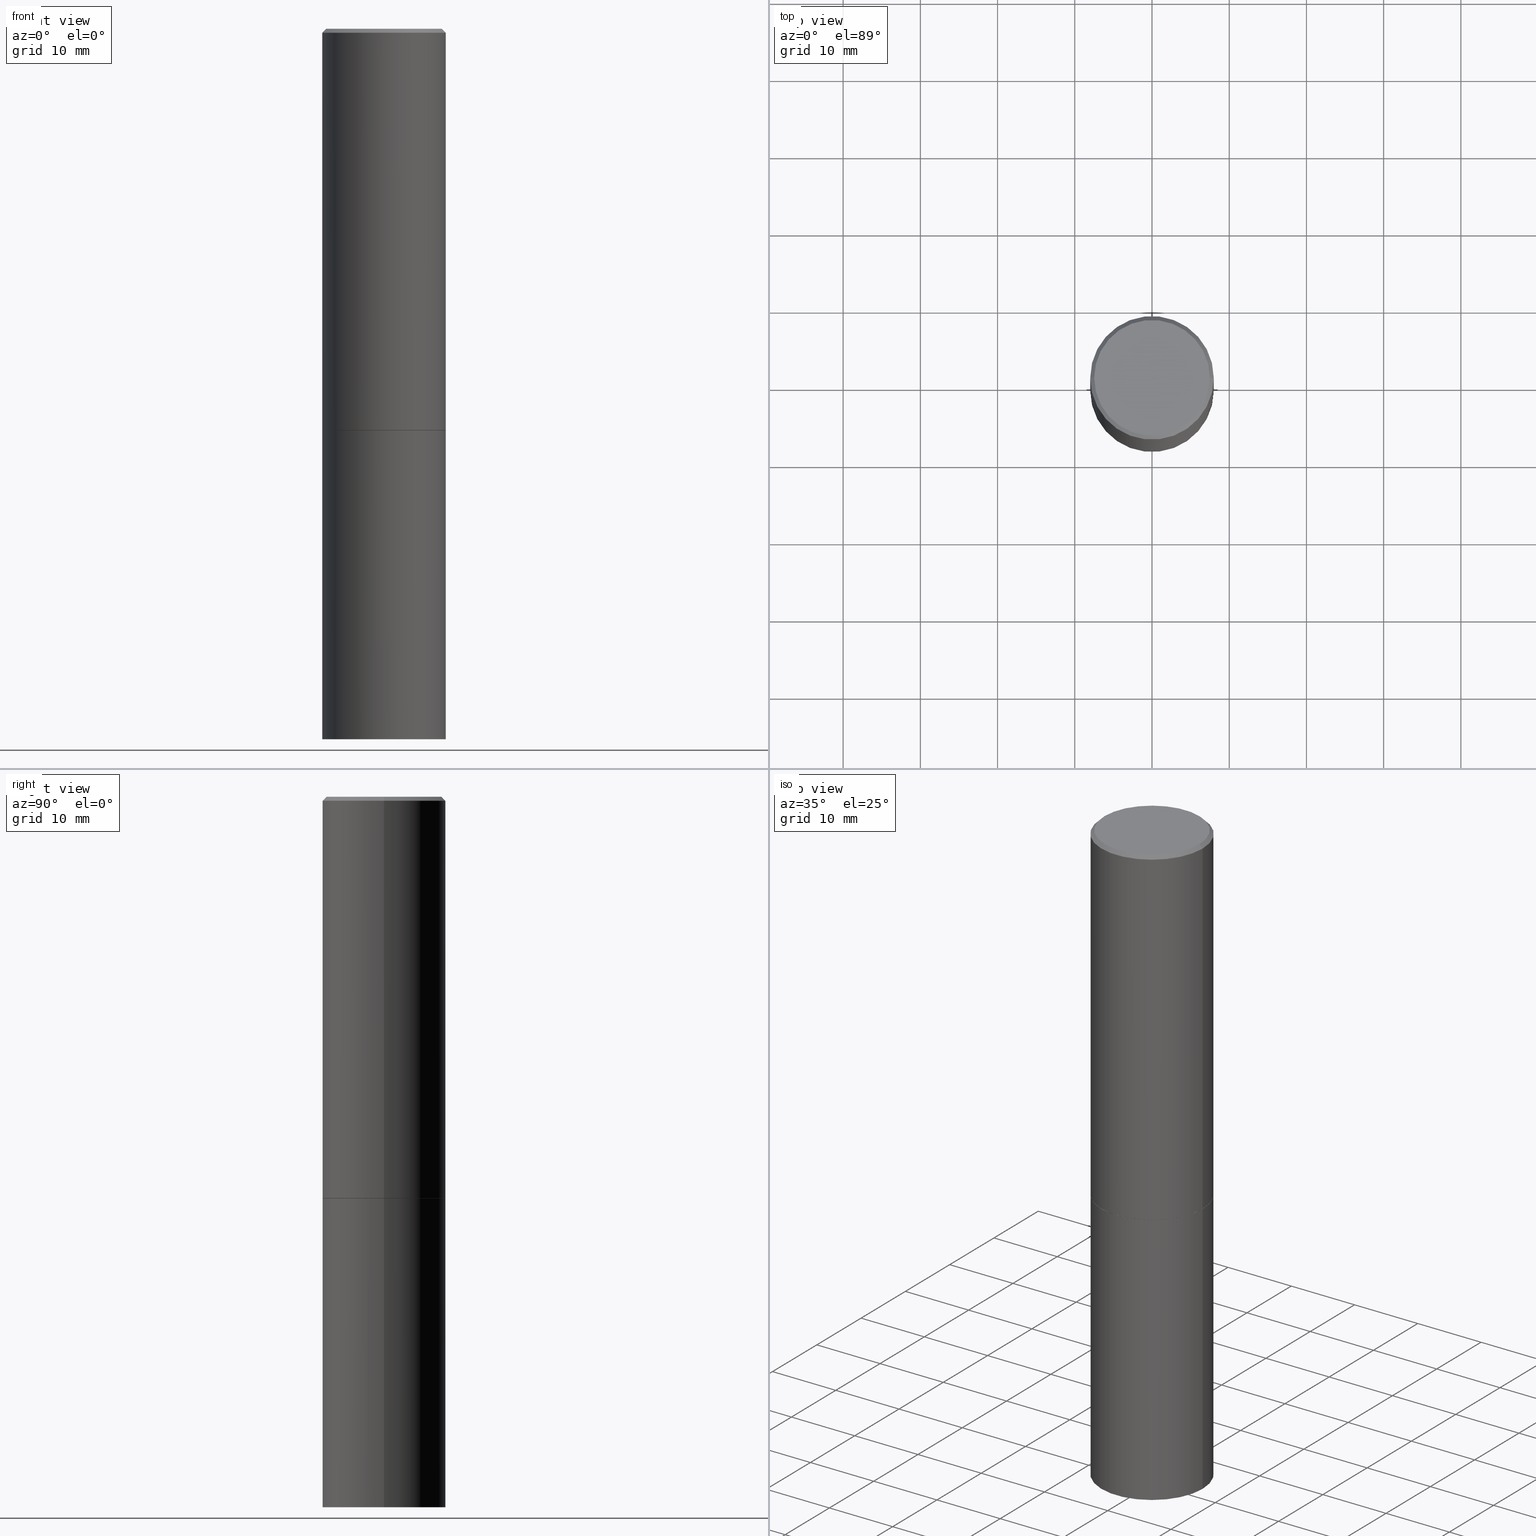
[diagram: canonical four-view strip — front | top / right | iso, engineering-drawing reading convention]
A machine part, canonical four-view strip (front | top / right | iso — engineering-drawing reading convention). The complete STEP part file that produces these views, byte-faithful:
ISO-10303-21;
HEADER;
FILE_DESCRIPTION (( 'STEP AP203' ),
    '1' );
FILE_NAME ('74468.STEP',
    '2024-02-29T11:19:29',
    ( '' ),
    ( '' ),
    'SwSTEP 2.0',
    'SolidWorks 2023',
    '' );
FILE_SCHEMA (( 'CONFIG_CONTROL_DESIGN' ));
ENDSEC;

DATA;
#1 = EDGE_LOOP ( 'NONE', ( #357, #334, #13, #219 ) ) ;
#2 = EDGE_CURVE ( 'NONE', #282, #135, #363, .T. ) ;
#3 = AXIS2_PLACEMENT_3D ( 'NONE', #105, #217, #14 ) ;
#4 = LOCAL_TIME ( 6, 19, 29.00000000000000000, #132 ) ;
#5 = CALENDAR_DATE ( 2024, 29, 2 ) ;
#6 = EDGE_CURVE ( 'NONE', #172, #43, #211, .T. ) ;
#7 = CALENDAR_DATE ( 2024, 29, 2 ) ;
#8 = CYLINDRICAL_SURFACE ( 'NONE', #254, 0.3149500000000000077 ) ;
#9 = DIRECTION ( 'NONE',  ( 1.000000000000000000, -6.982962677686266711E-15, 4.876176775795936353E-29 ) ) ;
#10 = APPROVAL_PERSON_ORGANIZATION ( #259, #210, #33 ) ;
#11 = DATE_AND_TIME ( #7, #4 ) ;
#12 = LINE ( 'NONE', #353, #75 ) ;
#13 = ORIENTED_EDGE ( 'NONE', *, *, #44, .T. ) ;
#14 = DIRECTION ( 'NONE',  ( 1.000000000000000000, -6.982962677686267499E-15, 4.876053491004739391E-29 ) ) ;
#15 = EDGE_LOOP ( 'NONE', ( #274, #253, #249, #165 ) ) ;
#16 = CC_DESIGN_SECURITY_CLASSIFICATION ( #206, ( #269 ) ) ;
#17 = CARTESIAN_POINT ( 'NONE',  ( 0.3149500000000000077, -2.199284095337289871E-15, 1.535751875536930130E-29 ) ) ;
#18 = ADVANCED_FACE ( 'NONE', ( #226 ), #341, .F. ) ;
#19 = VERTEX_POINT ( 'NONE', #292 ) ;
#20 = DIRECTION ( 'NONE',  ( 1.000000000000000000, -6.982962677686267499E-15, 4.876053491004739391E-29 ) ) ;
#21 = ORIENTED_EDGE ( 'NONE', *, *, #283, .T. ) ;
#22 = CARTESIAN_POINT ( 'NONE',  ( 0.3149500000000000077, -9.343553210878133488E-15, -2.046199999999999797 ) ) ;
#23 = EDGE_LOOP ( 'NONE', ( #247, #141 ) ) ;
#24 = VECTOR ( 'NONE', #333, 39.37007874015748143 ) ;
#25 = CARTESIAN_POINT ( 'NONE',  ( -0.2949499999999997124, 2.094539655171993740E-15, 8.537024980186296424E-18 ) ) ;
#26 = ORIENTED_EDGE ( 'NONE', *, *, #251, .T. ) ;
#27 = PERSON_AND_ORGANIZATION ( #120, #275 ) ;
#28 = DIRECTION ( 'NONE',  ( -2.445468806185136597E-29, 3.491481338843145583E-15, 1.000000000000000000 ) ) ;
#29 = CLOSED_SHELL ( 'NONE', ( #40, #336, #324, #192, #360, #80, #116, #152 ) ) ;
#30 = DIRECTION ( 'NONE',  ( -2.445468806185136597E-29, 3.491481338843145583E-15, 1.000000000000000000 ) ) ;
#31 = EDGE_CURVE ( 'NONE', #81, #311, #92, .T. ) ;
#32 = PERSON_AND_ORGANIZATION_ROLE ( 'design_owner' ) ;
#33 = APPROVAL_ROLE ( '' ) ;
#34 = VECTOR ( 'NONE', #339, 39.37007874015748143 ) ;
#35 = PLANE ( 'NONE',  #130 ) ;
#36 = DIRECTION ( 'NONE',  ( 1.000000000000000000, -6.982962677686264344E-15, 0.000000000000000000 ) ) ;
#37 = SECURITY_CLASSIFICATION_LEVEL ( 'unclassified' ) ;
#38 = AXIS2_PLACEMENT_3D ( 'NONE', #131, #65, #265 ) ;
#39 = LOCAL_TIME ( 6, 19, 29.00000000000000000, #127 ) ;
#40 = ADVANCED_FACE ( 'NONE', ( #244 ), #290, .T. ) ;
#41 = DATE_AND_TIME ( #158, #39 ) ;
#42 = CARTESIAN_POINT ( 'NONE',  ( 5.003918271216025517E-29, -7.144269115540843617E-15, -2.046199999999999797 ) ) ;
#43 = VERTEX_POINT ( 'NONE', #271 ) ;
#44 = EDGE_CURVE ( 'NONE', #191, #282, #12, .T. ) ;
#45 = DIRECTION ( 'NONE',  ( 1.000000000000000000, -6.982962677686266711E-15, 0.000000000000000000 ) ) ;
#46 = ORIENTED_EDGE ( 'NONE', *, *, #63, .T. ) ;
#47 = CC_DESIGN_PERSON_AND_ORGANIZATION_ASSIGNMENT ( #349, #299, ( #206 ) ) ;
#48 = DIRECTION ( 'NONE',  ( 2.438088387897960049E-29, -3.491481338843145188E-15, -1.000000000000000000 ) ) ;
#49 = EDGE_LOOP ( 'NONE', ( #101, #83 ) ) ;
#50 = MANIFOLD_SOLID_BREP ( 'Body-Move/Copy2[2]', #29 ) ;
#51 = LINE ( 'NONE', #246, #284 ) ;
#52 = VERTEX_POINT ( 'NONE', #350 ) ;
#53 = DIRECTION ( 'NONE',  ( -1.000000000000000000, 6.982962677686266711E-15, 0.000000000000000000 ) ) ;
#54 = ORIENTED_EDGE ( 'NONE', *, *, #298, .F. ) ;
#55 = CIRCLE ( 'NONE', #203, 0.3149500000000000077 ) ;
#56 = DATE_AND_TIME ( #82, #225 ) ;
#57 = LENGTH_MEASURE_WITH_UNIT ( LENGTH_MEASURE( 0.02539999999999999897 ), #229 );
#58 = COORDINATED_UNIVERSAL_TIME_OFFSET ( 5, 0, .BEHIND. ) ;
#59 = CC_DESIGN_APPROVAL ( #210, ( #269 ) ) ;
#60 = CARTESIAN_POINT ( 'NONE',  ( 0.000000000000000000, 0.000000000000000000, 0.000000000000000000 ) ) ;
#61 = APPROVAL_STATUS ( 'not_yet_approved' ) ;
#62 = FACE_OUTER_BOUND ( 'NONE', #15, .T. ) ;
#63 = EDGE_CURVE ( 'NONE', #135, #282, #236, .T. ) ;
#64 = AXIS2_PLACEMENT_3D ( 'NONE', #78, #72, #115 ) ;
#65 = DIRECTION ( 'NONE',  ( 2.438088387897960049E-29, -3.491481338843145188E-15, -1.000000000000000000 ) ) ;
#66 = ORIENTED_EDGE ( 'NONE', *, *, #63, .F. ) ;
#67 = CARTESIAN_POINT ( 'NONE',  ( 5.006363740022209999E-29, -7.147760596879685046E-15, -2.047199999999999243 ) ) ;
#68 = DIRECTION ( 'NONE',  ( 1.000000000000000000, -6.982962677686266711E-15, 0.000000000000000000 ) ) ;
#69 = CIRCLE ( 'NONE', #260, 0.2949499999999997124 ) ;
#70 = DIRECTION ( 'NONE',  ( 1.000000000000000000, -6.982962677686264344E-15, 0.000000000000000000 ) ) ;
#71 = CARTESIAN_POINT ( 'NONE',  ( 4.890937612370289799E-31, -6.982962677686315028E-17, -0.02000000000000006981 ) ) ;
#72 = DIRECTION ( 'NONE',  ( 2.438088387897960049E-29, -3.491481338843145188E-15, -1.000000000000000000 ) ) ;
#73 = FACE_OUTER_BOUND ( 'NONE', #137, .T. ) ;
#74 = EDGE_LOOP ( 'NONE', ( #104, #296, #169, #366 ) ) ;
#75 = VECTOR ( 'NONE', #325, 39.37007874015748143 ) ;
#76 = AXIS2_PLACEMENT_3D ( 'NONE', #337, #79, #70 ) ;
#77 = CARTESIAN_POINT ( 'NONE',  ( -0.3149499999999997302, 2.129454468560424601E-15, -0.02000000000000006981 ) ) ;
#78 = CARTESIAN_POINT ( 'NONE',  ( 2.199284095337339175E-15, 0.3149499999999928468, -2.047200000000001019 ) ) ;
#79 = DIRECTION ( 'NONE',  ( -2.445468806185136597E-29, 3.491481338843145583E-15, 1.000000000000000000 ) ) ;
#80 = ADVANCED_FACE ( 'NONE', ( #62 ), #99, .T. ) ;
#81 = VERTEX_POINT ( 'NONE', #321 ) ;
#82 = CALENDAR_DATE ( 2024, 29, 2 ) ;
#83 = ORIENTED_EDGE ( 'NONE', *, *, #261, .F. ) ;
#84 = CONICAL_SURFACE ( 'NONE', #89, 0.3149499999999997302, 0.7853981633974471688 ) ;
#85 = FACE_OUTER_BOUND ( 'NONE', #340, .T. ) ;
#86 = PERSON_AND_ORGANIZATION ( #120, #275 ) ;
#87 = CC_DESIGN_DATE_AND_TIME_ASSIGNMENT ( #41, #129, ( #206 ) ) ;
#88 = CYLINDRICAL_SURFACE ( 'NONE', #351, 0.3149499999999998967 ) ;
#89 = AXIS2_PLACEMENT_3D ( 'NONE', #71, #168, #138 ) ;
#90 = APPROVAL_ROLE ( '' ) ;
#91 = CC_DESIGN_PERSON_AND_ORGANIZATION_ASSIGNMENT ( #235, #32, ( #156 ) ) ;
#92 = CIRCLE ( 'NONE', #308, 0.3149500000000000077 ) ;
#93 = AXIS2_PLACEMENT_3D ( 'NONE', #267, #303, #293 ) ;
#94 = DIRECTION ( 'NONE',  ( 1.000000000000000000, -6.982962677686264344E-15, 0.000000000000000000 ) ) ;
#95 = ADVANCED_FACE ( 'NONE', ( #327 ), #182, .T. ) ;
#96 = CARTESIAN_POINT ( 'NONE',  ( 0.3149500000000000077, -1.484542950462716186E-14, -3.621999999999999886 ) ) ;
#97 = DIRECTION ( 'NONE',  ( 1.000000000000000000, -6.982962677686269866E-15, 0.000000000000000000 ) ) ;
#98 = DIRECTION ( 'NONE',  ( -2.445468806185136877E-29, 3.491481338843145188E-15, 1.000000000000000000 ) ) ;
#99 = CONICAL_SURFACE ( 'NONE', #245, 0.3139500000000000068, 0.7853981633975507526 ) ;
#100 = DIRECTION ( 'NONE',  ( -2.445468806185136877E-29, 3.491481338843145188E-15, 1.000000000000000000 ) ) ;
#101 = ORIENTED_EDGE ( 'NONE', *, *, #196, .F. ) ;
#102 = APPROVAL ( #345, 'UNSPECIFIED' ) ;
#103 = CARTESIAN_POINT ( 'NONE',  ( -2.087702828670439639E-46, 2.980686340760894400E-32, 8.537024980200822558E-18 ) ) ;
#104 = ORIENTED_EDGE ( 'NONE', *, *, #6, .T. ) ;
#105 = CARTESIAN_POINT ( 'NONE',  ( -2.087702828670439639E-46, 2.980686340760894400E-32, 8.537024980200822558E-18 ) ) ;
#106 = DIRECTION ( 'NONE',  ( -2.445468806185136597E-29, 3.491481338843145583E-15, 1.000000000000000000 ) ) ;
#107 = LOCAL_TIME ( 6, 19, 29.00000000000000000, #58 ) ;
#108 = LINE ( 'NONE', #255, #34 ) ;
#109 = ORIENTED_EDGE ( 'NONE', *, *, #186, .T. ) ;
#110 = APPROVAL ( #123, 'UNSPECIFIED' ) ;
#111 = APPLICATION_PROTOCOL_DEFINITION ( 'international standard', 'config_control_design', 1994, #180 ) ;
#112 = DIRECTION ( 'NONE',  ( 1.000000000000000000, -6.982962677686266711E-15, 0.000000000000000000 ) ) ;
#113 = APPLICATION_CONTEXT ( 'configuration controlled 3d designs of mechanical parts and assemblies' ) ;
#114 = DIRECTION ( 'NONE',  ( -2.445468806185136597E-29, 3.491481338843145583E-15, 1.000000000000000000 ) ) ;
#115 = DIRECTION ( 'NONE',  ( -1.000000000000000000, 6.982962677686265922E-15, -4.876176775795935793E-29 ) ) ;
#116 = ADVANCED_FACE ( 'NONE', ( #128 ), #35, .F. ) ;
#117 = APPROVAL_PERSON_ORGANIZATION ( #86, #102, #90 ) ;
#118 = CC_DESIGN_DATE_AND_TIME_ASSIGNMENT ( #320, #291, ( #276 ) ) ;
#119 =( NAMED_UNIT ( * ) PLANE_ANGLE_UNIT ( ) SI_UNIT ( $, .RADIAN. ) );
#120 = PERSON ( 'UNSPECIFIED', 'UNSPECIFIED', 'UNSPECIFIED', ('UNSPECIFIED'), ('UNSPECIFIED'), ('UNSPECIFIED') ) ;
#121 = LINE ( 'NONE', #231, #134 ) ;
#122 = PERSON_AND_ORGANIZATION_ROLE ( 'design_supplier' ) ;
#123 = APPROVAL_STATUS ( 'not_yet_approved' ) ;
#124 = ADVANCED_BREP_SHAPE_REPRESENTATION ( '74468', ( #175, #50, #184 ), #240 ) ;
#125 = PRODUCT_RELATED_PRODUCT_CATEGORY ( 'detail', '', ( #156 ) ) ;
#126 = FACE_OUTER_BOUND ( 'NONE', #359, .T. ) ;
#127 = COORDINATED_UNIVERSAL_TIME_OFFSET ( 5, 0, .BEHIND. ) ;
#128 = FACE_OUTER_BOUND ( 'NONE', #49, .T. ) ;
#129 = DATE_TIME_ROLE ( 'classification_date' ) ;
#130 = AXIS2_PLACEMENT_3D ( 'NONE', #154, #264, #237 ) ;
#131 = CARTESIAN_POINT ( 'NONE',  ( 2.059624841783562091E-15, 0.2949499999999997124, -1.025543908401684366E-15 ) ) ;
#132 = COORDINATED_UNIVERSAL_TIME_OFFSET ( 5, 0, .BEHIND. ) ;
#133 = DIRECTION ( 'NONE',  ( -2.445468806185136597E-29, 3.491481338843145583E-15, 1.000000000000000000 ) ) ;
#134 = VECTOR ( 'NONE', #343, 39.37007874015748143 ) ;
#135 = VERTEX_POINT ( 'NONE', #155 ) ;
#136 = CARTESIAN_POINT ( 'NONE',  ( 0.2949499999999997124, -2.127023677808858103E-15, 8.537024980215462707E-18 ) ) ;
#137 = EDGE_LOOP ( 'NONE', ( #228, #162, #46, #278 ) ) ;
#138 = DIRECTION ( 'NONE',  ( -1.000000000000000000, 6.982962677686266711E-15, 0.000000000000000000 ) ) ;
#139 = ORIENTED_EDGE ( 'NONE', *, *, #268, .F. ) ;
#140 = CARTESIAN_POINT ( 'NONE',  ( 2.199284095337378223E-15, 0.3149499999999873512, -3.622000000000000774 ) ) ;
#141 = ORIENTED_EDGE ( 'NONE', *, *, #344, .T. ) ;
#142 = VECTOR ( 'NONE', #98, 39.37007874015748143 ) ;
#143 = DIRECTION ( 'NONE',  ( -2.445468806185136597E-29, 3.491481338843145583E-15, 1.000000000000000000 ) ) ;
#144 = ORIENTED_EDGE ( 'NONE', *, *, #220, .T. ) ;
#145 = PERSON_AND_ORGANIZATION ( #120, #275 ) ;
#146 =( NAMED_UNIT ( * ) SI_UNIT ( $, .STERADIAN. ) SOLID_ANGLE_UNIT ( ) );
#147 = VECTOR ( 'NONE', #257, 39.37007874015748143 ) ;
#148 = APPROVAL_DATE_TIME ( #205, #102 ) ;
#149 = PERSON_AND_ORGANIZATION_ROLE ( 'creator' ) ;
#150 = COORDINATED_UNIVERSAL_TIME_OFFSET ( 5, 0, .BEHIND. ) ;
#151 = CARTESIAN_POINT ( 'NONE',  ( 5.006363740022211120E-29, -7.147760596879686624E-15, -2.047199999999999687 ) ) ;
#152 = ADVANCED_FACE ( 'NONE', ( #126 ), #322, .F. ) ;
#153 = AXIS2_PLACEMENT_3D ( 'NONE', #309, #193, #45 ) ;
#154 = CARTESIAN_POINT ( 'NONE',  ( 5.006363740022211680E-29, -7.147760596879688202E-15, -2.047200000000000131 ) ) ;
#155 = CARTESIAN_POINT ( 'NONE',  ( 0.3149499999999997302, -2.230543471175005478E-15, -0.02000000000000006981 ) ) ;
#156 = PRODUCT ( '74468', '74468', '', ( #204 ) ) ;
#157 = CC_DESIGN_PERSON_AND_ORGANIZATION_ASSIGNMENT ( #319, #149, ( #276 ) ) ;
#158 = CALENDAR_DATE ( 2024, 29, 2 ) ;
#159 = CIRCLE ( 'NONE', #294, 0.3149500000000000077 ) ;
#160 = ORIENTED_EDGE ( 'NONE', *, *, #268, .T. ) ;
#161 = FACE_OUTER_BOUND ( 'NONE', #272, .T. ) ;
#162 = ORIENTED_EDGE ( 'NONE', *, *, #347, .T. ) ;
#163 = CARTESIAN_POINT ( 'NONE',  ( 8.857488016002564476E-29, -1.264614540928987199E-14, -3.621999999999999886 ) ) ;
#164 = AXIS2_PLACEMENT_3D ( 'NONE', #67, #208, #36 ) ;
#165 = ORIENTED_EDGE ( 'NONE', *, *, #314, .F. ) ;
#166 = CARTESIAN_POINT ( 'NONE',  ( 0.000000000000000000, 0.000000000000000000, 0.000000000000000000 ) ) ;
#167 = ORIENTED_EDGE ( 'NONE', *, *, #6, .F. ) ;
#168 = DIRECTION ( 'NONE',  ( 2.445468806185136597E-29, -3.491481338843145583E-15, -1.000000000000000000 ) ) ;
#169 = ORIENTED_EDGE ( 'NONE', *, *, #31, .F. ) ;
#170 = ADVANCED_FACE ( 'NONE', ( #241 ), #8, .T. ) ;
#171 = CYLINDRICAL_SURFACE ( 'NONE', #355, 0.3149499999999998967 ) ;
#172 = VERTEX_POINT ( 'NONE', #96 ) ;
#173 = AXIS2_PLACEMENT_3D ( 'NONE', #197, #200, #53 ) ;
#174 = APPROVAL_DATE_TIME ( #56, #210 ) ;
#175 = MANIFOLD_SOLID_BREP ( 'Body-Move/Copy2[1]', #183 ) ;
#176 =( CONVERSION_BASED_UNIT ( 'INCH', #57 ) LENGTH_UNIT ( ) NAMED_UNIT ( #297 ) );
#177 = CALENDAR_DATE ( 2024, 29, 2 ) ;
#178 = LOCAL_TIME ( 6, 19, 29.00000000000000000, #262 ) ;
#179 = DIRECTION ( 'NONE',  ( 0.000000000000000000, 0.000000000000000000, 1.000000000000000000 ) ) ;
#180 = APPLICATION_CONTEXT ( 'configuration controlled 3d designs of mechanical parts and assemblies' ) ;
#181 = EDGE_CURVE ( 'NONE', #43, #311, #214, .T. ) ;
#182 = CYLINDRICAL_SURFACE ( 'NONE', #93, 0.3149500000000000077 ) ;
#183 = CLOSED_SHELL ( 'NONE', ( #95, #289, #18, #170 ) ) ;
#184 = AXIS2_PLACEMENT_3D ( 'NONE', #234, #179, #346 ) ;
#185 = ORIENTED_EDGE ( 'NONE', *, *, #243, .T. ) ;
#186 = EDGE_CURVE ( 'NONE', #191, #238, #69, .T. ) ;
#187 = SHAPE_DEFINITION_REPRESENTATION ( #329, #124 ) ;
#188 = DIRECTION ( 'NONE',  ( -2.445468806185136597E-29, 3.491481338843145583E-15, 1.000000000000000000 ) ) ;
#189 = AXIS2_PLACEMENT_3D ( 'NONE', #42, #221, #279 ) ;
#190 = DIRECTION ( 'NONE',  ( -2.445468806185136597E-29, 3.491481338843145583E-15, 1.000000000000000000 ) ) ;
#191 = VERTEX_POINT ( 'NONE', #25 ) ;
#192 = ADVANCED_FACE ( 'NONE', ( #305 ), #84, .T. ) ;
#193 = DIRECTION ( 'NONE',  ( -2.445468806185136597E-29, 3.491481338843145583E-15, 1.000000000000000000 ) ) ;
#194 = DIRECTION ( 'NONE',  ( -2.445468806185136597E-29, 3.491481338843145583E-15, 1.000000000000000000 ) ) ;
#195 = ORIENTED_EDGE ( 'NONE', *, *, #251, .F. ) ;
#196 = EDGE_CURVE ( 'NONE', #52, #307, #233, .T. ) ;
#197 = CARTESIAN_POINT ( 'NONE',  ( 4.890937612370289799E-31, -6.982962677686315028E-17, -0.02000000000000006981 ) ) ;
#198 = ORIENTED_EDGE ( 'NONE', *, *, #223, .T. ) ;
#199 = VERTEX_POINT ( 'NONE', #22 ) ;
#200 = DIRECTION ( 'NONE',  ( 2.445468806185136597E-29, -3.491481338843145583E-15, -1.000000000000000000 ) ) ;
#201 = EDGE_LOOP ( 'NONE', ( #202, #26, #21, #286 ) ) ;
#202 = ORIENTED_EDGE ( 'NONE', *, *, #181, .F. ) ;
#203 = AXIS2_PLACEMENT_3D ( 'NONE', #318, #114, #288 ) ;
#204 = MECHANICAL_CONTEXT ( 'NONE', #113, 'mechanical' ) ;
#205 = DATE_AND_TIME ( #177, #107 ) ;
#206 = SECURITY_CLASSIFICATION ( '', '', #37 ) ;
#207 = DIRECTION ( 'NONE',  ( 1.000000000000000000, -6.982962677686265922E-15, 4.876176775795935232E-29 ) ) ;
#208 = DIRECTION ( 'NONE',  ( -2.445468806185136597E-29, 3.491481338843145583E-15, 1.000000000000000000 ) ) ;
#209 = CARTESIAN_POINT ( 'NONE',  ( 5.006363740022209999E-29, -7.147760596879685046E-15, -2.047199999999999243 ) ) ;
#210 = APPROVAL ( #61, 'UNSPECIFIED' ) ;
#211 = CIRCLE ( 'NONE', #239, 0.3149500000000000077 ) ;
#212 = CARTESIAN_POINT ( 'NONE',  ( 0.000000000000000000, 0.000000000000000000, 0.000000000000000000 ) ) ;
#213 = APPROVAL_DATE_TIME ( #11, #110 ) ;
#214 = LINE ( 'NONE', #356, #24 ) ;
#215 = EDGE_CURVE ( 'NONE', #52, #199, #51, .T. ) ;
#216 = CIRCLE ( 'NONE', #76, 0.3139500000000000068 ) ;
#217 = DIRECTION ( 'NONE',  ( -2.445468806185136597E-29, 3.491481338843145583E-15, 1.000000000000000000 ) ) ;
#218 = CARTESIAN_POINT ( 'NONE',  ( -0.3149499999999998967, 2.237854346276434801E-15, -1.549218606675782116E-29 ) ) ;
#219 = ORIENTED_EDGE ( 'NONE', *, *, #2, .T. ) ;
#220 = EDGE_CURVE ( 'NONE', #238, #191, #335, .T. ) ;
#221 = DIRECTION ( 'NONE',  ( -2.445468806185136597E-29, 3.491481338843145583E-15, 1.000000000000000000 ) ) ;
#222 = EDGE_LOOP ( 'NONE', ( #256, #198, #139, #304 ) ) ;
#223 = EDGE_CURVE ( 'NONE', #307, #19, #108, .T. ) ;
#224 = DIRECTION ( 'NONE',  ( 0.7071067811866199593, -2.468850131083015945E-15, 0.7071067811864750752 ) ) ;
#225 = LOCAL_TIME ( 6, 19, 29.00000000000000000, #150 ) ;
#226 = FACE_OUTER_BOUND ( 'NONE', #23, .T. ) ;
#227 = CARTESIAN_POINT ( 'NONE',  ( 0.3149499999999998967, -2.199284095337288688E-15, 1.535751875536929289E-29 ) ) ;
#228 = ORIENTED_EDGE ( 'NONE', *, *, #220, .F. ) ;
#229 =( LENGTH_UNIT ( ) NAMED_UNIT ( * ) SI_UNIT ( $, .METRE. ) );
#230 = DIRECTION ( 'NONE',  ( 1.000000000000000000, -6.982962677686263555E-15, 0.000000000000000000 ) ) ;
#231 = CARTESIAN_POINT ( 'NONE',  ( 0.3149499999999997302, -2.230543471175005478E-15, -0.02000000000000006981 ) ) ;
#232 = AXIS2_PLACEMENT_3D ( 'NONE', #280, #258, #112 ) ;
#233 = CIRCLE ( 'NONE', #315, 0.3139500000000000068 ) ;
#234 = CARTESIAN_POINT ( 'NONE',  ( 0.000000000000000000, 0.000000000000000000, 0.000000000000000000 ) ) ;
#235 = PERSON_AND_ORGANIZATION ( #120, #275 ) ;
#236 = CIRCLE ( 'NONE', #263, 0.3149499999999997302 ) ;
#237 = DIRECTION ( 'NONE',  ( 1.000000000000000000, -6.982962677686265922E-15, 4.876176775795935793E-29 ) ) ;
#238 = VERTEX_POINT ( 'NONE', #136 ) ;
#239 = AXIS2_PLACEMENT_3D ( 'NONE', #338, #106, #230 ) ;
#240 =( GEOMETRIC_REPRESENTATION_CONTEXT ( 3 ) GLOBAL_UNCERTAINTY_ASSIGNED_CONTEXT ( ( #317 ) ) GLOBAL_UNIT_ASSIGNED_CONTEXT ( ( #176, #119, #146 ) ) REPRESENTATION_CONTEXT ( 'NONE', 'WORKASPACE' ) );
#241 = FACE_OUTER_BOUND ( 'NONE', #201, .T. ) ;
#242 = CARTESIAN_POINT ( 'NONE',  ( 4.890937612370289799E-31, -6.982962677686315028E-17, -0.02000000000000006981 ) ) ;
#243 = EDGE_CURVE ( 'NONE', #19, #282, #281, .T. ) ;
#244 = FACE_OUTER_BOUND ( 'NONE', #222, .T. ) ;
#245 = AXIS2_PLACEMENT_3D ( 'NONE', #209, #190, #94 ) ;
#246 = CARTESIAN_POINT ( 'NONE',  ( 0.3139500000000000068, -9.340061729539288903E-15, -2.047199999999999243 ) ) ;
#247 = ORIENTED_EDGE ( 'NONE', *, *, #31, .T. ) ;
#248 = PLANE ( 'NONE',  #301 ) ;
#249 = ORIENTED_EDGE ( 'NONE', *, *, #215, .T. ) ;
#250 = DESIGN_CONTEXT ( 'detailed design', #180, 'design' ) ;
#251 = EDGE_CURVE ( 'NONE', #43, #172, #159, .T. ) ;
#252 = LINE ( 'NONE', #17, #147 ) ;
#253 = ORIENTED_EDGE ( 'NONE', *, *, #261, .T. ) ;
#254 = AXIS2_PLACEMENT_3D ( 'NONE', #212, #188, #9 ) ;
#255 = CARTESIAN_POINT ( 'NONE',  ( -0.3139500000000000068, -4.917011677960851648E-15, -2.047199999999999243 ) ) ;
#256 = ORIENTED_EDGE ( 'NONE', *, *, #196, .T. ) ;
#257 = DIRECTION ( 'NONE',  ( -2.445468806185136877E-29, 3.491481338843145188E-15, 1.000000000000000000 ) ) ;
#258 = DIRECTION ( 'NONE',  ( -2.445468806185136597E-29, 3.491481338843145583E-15, 1.000000000000000000 ) ) ;
#259 = PERSON_AND_ORGANIZATION ( #120, #275 ) ;
#260 = AXIS2_PLACEMENT_3D ( 'NONE', #103, #133, #20 ) ;
#261 = EDGE_CURVE ( 'NONE', #307, #52, #216, .T. ) ;
#262 = COORDINATED_UNIVERSAL_TIME_OFFSET ( 5, 0, .BEHIND. ) ;
#263 = AXIS2_PLACEMENT_3D ( 'NONE', #242, #352, #68 ) ;
#264 = DIRECTION ( 'NONE',  ( -2.438088387897960049E-29, 3.491481338843145188E-15, 1.000000000000000000 ) ) ;
#265 = DIRECTION ( 'NONE',  ( -1.000000000000000000, 6.982962677686265922E-15, -4.876176775795935793E-29 ) ) ;
#266 = APPROVAL_ROLE ( '' ) ;
#267 = CARTESIAN_POINT ( 'NONE',  ( 0.000000000000000000, 0.000000000000000000, 0.000000000000000000 ) ) ;
#268 = EDGE_CURVE ( 'NONE', #199, #19, #364, .T. ) ;
#269 = PRODUCT_DEFINITION_FORMATION_WITH_SPECIFIED_SOURCE ( 'ANY', '', #156, .NOT_KNOWN. ) ;
#270 = CC_DESIGN_PERSON_AND_ORGANIZATION_ASSIGNMENT ( #27, #122, ( #269 ) ) ;
#271 = CARTESIAN_POINT ( 'NONE',  ( -0.3149500000000000077, -7.659098656808343322E-15, -3.621999999999999886 ) ) ;
#272 = EDGE_LOOP ( 'NONE', ( #160, #185, #66, #54 ) ) ;
#273 = DIRECTION ( 'NONE',  ( 1.000000000000000000, -6.982962677686265922E-15, 4.876176775795935232E-29 ) ) ;
#274 = ORIENTED_EDGE ( 'NONE', *, *, #223, .F. ) ;
#275 = ORGANIZATION ( 'UNSPECIFIED', 'UNSPECIFIED', '' ) ;
#276 = PRODUCT_DEFINITION ( 'UNKNOWN', '', #269, #250 ) ;
#277 = CARTESIAN_POINT ( 'NONE',  ( -0.3139500000000000068, -4.911713223612629246E-15, -2.047199999999999243 ) ) ;
#278 = ORIENTED_EDGE ( 'NONE', *, *, #44, .F. ) ;
#279 = DIRECTION ( 'NONE',  ( 1.000000000000000000, -6.982962677686266711E-15, 0.000000000000000000 ) ) ;
#280 = CARTESIAN_POINT ( 'NONE',  ( 4.890937612370289799E-31, -6.982962677686315028E-17, -0.02000000000000006981 ) ) ;
#281 = LINE ( 'NONE', #218, #342 ) ;
#282 = VERTEX_POINT ( 'NONE', #77 ) ;
#283 = EDGE_CURVE ( 'NONE', #172, #81, #252, .T. ) ;
#284 = VECTOR ( 'NONE', #224, 39.37007874015748143 ) ;
#285 = DIRECTION ( 'NONE',  ( -2.445468806185136597E-29, 3.491481338843145583E-15, 1.000000000000000000 ) ) ;
#286 = ORIENTED_EDGE ( 'NONE', *, *, #344, .F. ) ;
#287 = PERSON_AND_ORGANIZATION_ROLE ( 'creator' ) ;
#288 = DIRECTION ( 'NONE',  ( 1.000000000000000000, -6.982962677686269866E-15, 0.000000000000000000 ) ) ;
#289 = ADVANCED_FACE ( 'NONE', ( #312 ), #248, .T. ) ;
#290 = CONICAL_SURFACE ( 'NONE', #164, 0.3139500000000000068, 0.7853981633975507526 ) ;
#291 = DATE_TIME_ROLE ( 'creation_date' ) ;
#292 = CARTESIAN_POINT ( 'NONE',  ( -0.3149500000000000077, -1.369195024882416092E-15, -2.046199999999999797 ) ) ;
#293 = DIRECTION ( 'NONE',  ( 1.000000000000000000, -6.982962677686266711E-15, 4.876176775795936353E-29 ) ) ;
#294 = AXIS2_PLACEMENT_3D ( 'NONE', #163, #143, #330 ) ;
#295 = APPROVAL_PERSON_ORGANIZATION ( #326, #110, #266 ) ;
#296 = ORIENTED_EDGE ( 'NONE', *, *, #181, .T. ) ;
#297 = DIMENSIONAL_EXPONENTS ( 1.000000000000000000, 0.000000000000000000, 0.000000000000000000, 0.000000000000000000, 0.000000000000000000, 0.000000000000000000, 0.000000000000000000 ) ;
#298 = EDGE_CURVE ( 'NONE', #199, #135, #365, .T. ) ;
#299 = PERSON_AND_ORGANIZATION_ROLE ( 'classification_officer' ) ;
#300 = CC_DESIGN_PERSON_AND_ORGANIZATION_ASSIGNMENT ( #145, #287, ( #269 ) ) ;
#301 = AXIS2_PLACEMENT_3D ( 'NONE', #140, #48, #361 ) ;
#302 = CC_DESIGN_APPROVAL ( #110, ( #206 ) ) ;
#303 = DIRECTION ( 'NONE',  ( -2.445468806185136597E-29, 3.491481338843145583E-15, 1.000000000000000000 ) ) ;
#304 = ORIENTED_EDGE ( 'NONE', *, *, #215, .F. ) ;
#305 = FACE_OUTER_BOUND ( 'NONE', #1, .T. ) ;
#306 = CARTESIAN_POINT ( 'NONE',  ( 5.006363740022209999E-29, -7.147760596879685046E-15, -2.047199999999999243 ) ) ;
#307 = VERTEX_POINT ( 'NONE', #277 ) ;
#308 = AXIS2_PLACEMENT_3D ( 'NONE', #151, #28, #97 ) ;
#309 = CARTESIAN_POINT ( 'NONE',  ( 5.003918271216025517E-29, -7.144269115540843617E-15, -2.046199999999999797 ) ) ;
#310 = EDGE_LOOP ( 'NONE', ( #167, #195 ) ) ;
#311 = VERTEX_POINT ( 'NONE', #358 ) ;
#312 = FACE_OUTER_BOUND ( 'NONE', #310, .T. ) ;
#313 = ORIENTED_EDGE ( 'NONE', *, *, #243, .F. ) ;
#314 = EDGE_CURVE ( 'NONE', #19, #199, #348, .T. ) ;
#315 = AXIS2_PLACEMENT_3D ( 'NONE', #306, #194, #331 ) ;
#316 = APPLICATION_PROTOCOL_DEFINITION ( 'international standard', 'config_control_design', 1994, #113 ) ;
#317 = UNCERTAINTY_MEASURE_WITH_UNIT (LENGTH_MEASURE( 1.000000000000000082E-05 ), #176, 'distance_accuracy_value', 'NONE');
#318 = CARTESIAN_POINT ( 'NONE',  ( 5.006363740022211120E-29, -7.147760596879686624E-15, -2.047199999999999687 ) ) ;
#319 = PERSON_AND_ORGANIZATION ( #120, #275 ) ;
#320 = DATE_AND_TIME ( #5, #178 ) ;
#321 = CARTESIAN_POINT ( 'NONE',  ( 0.3149500000000000077, -9.347044692216978073E-15, -2.047199999999999687 ) ) ;
#322 = PLANE ( 'NONE',  #38 ) ;
#323 = CC_DESIGN_APPROVAL ( #102, ( #276 ) ) ;
#324 = ADVANCED_FACE ( 'NONE', ( #73 ), #328, .T. ) ;
#325 = DIRECTION ( 'NONE',  ( -0.7071067811865466846, 2.468850131082247989E-15, -0.7071067811865483499 ) ) ;
#326 = PERSON_AND_ORGANIZATION ( #120, #275 ) ;
#327 = FACE_OUTER_BOUND ( 'NONE', #74, .T. ) ;
#328 = CONICAL_SURFACE ( 'NONE', #173, 0.3149499999999997302, 0.7853981633974471688 ) ;
#329 = PRODUCT_DEFINITION_SHAPE ( 'NONE', 'NONE',  #276 ) ;
#330 = DIRECTION ( 'NONE',  ( 1.000000000000000000, -6.982962677686263555E-15, 0.000000000000000000 ) ) ;
#331 = DIRECTION ( 'NONE',  ( 1.000000000000000000, -6.982962677686264344E-15, 0.000000000000000000 ) ) ;
#332 = ORIENTED_EDGE ( 'NONE', *, *, #314, .T. ) ;
#333 = DIRECTION ( 'NONE',  ( -2.445468806185136877E-29, 3.491481338843145188E-15, 1.000000000000000000 ) ) ;
#334 = ORIENTED_EDGE ( 'NONE', *, *, #186, .F. ) ;
#335 = CIRCLE ( 'NONE', #3, 0.2949499999999997124 ) ;
#336 = ADVANCED_FACE ( 'NONE', ( #161 ), #171, .T. ) ;
#337 = CARTESIAN_POINT ( 'NONE',  ( 5.006363740022209999E-29, -7.147760596879685046E-15, -2.047199999999999243 ) ) ;
#338 = CARTESIAN_POINT ( 'NONE',  ( 8.857488016002564476E-29, -1.264614540928987199E-14, -3.621999999999999886 ) ) ;
#339 = DIRECTION ( 'NONE',  ( -0.7071067811866199593, 7.493145998870616062E-15, 0.7071067811864750752 ) ) ;
#340 = EDGE_LOOP ( 'NONE', ( #313, #332, #362, #354 ) ) ;
#341 = PLANE ( 'NONE',  #64 ) ;
#342 = VECTOR ( 'NONE', #100, 39.37007874015748143 ) ;
#343 = DIRECTION ( 'NONE',  ( 0.7071067811865466846, -7.319954787623252890E-15, -0.7071067811865483499 ) ) ;
#344 = EDGE_CURVE ( 'NONE', #311, #81, #55, .T. ) ;
#345 = APPROVAL_STATUS ( 'not_yet_approved' ) ;
#346 = DIRECTION ( 'NONE',  ( 1.000000000000000000, 0.000000000000000000, 0.000000000000000000 ) ) ;
#347 = EDGE_CURVE ( 'NONE', #238, #135, #121, .T. ) ;
#348 = CIRCLE ( 'NONE', #189, 0.3149500000000000077 ) ;
#349 = PERSON_AND_ORGANIZATION ( #120, #275 ) ;
#350 = CARTESIAN_POINT ( 'NONE',  ( 0.3139500000000000068, -9.340061729539288903E-15, -2.047199999999999243 ) ) ;
#351 = AXIS2_PLACEMENT_3D ( 'NONE', #60, #30, #207 ) ;
#352 = DIRECTION ( 'NONE',  ( -2.445468806185136597E-29, 3.491481338843145583E-15, 1.000000000000000000 ) ) ;
#353 = CARTESIAN_POINT ( 'NONE',  ( -0.3149499999999997302, 2.129454468560424601E-15, -0.02000000000000006981 ) ) ;
#354 = ORIENTED_EDGE ( 'NONE', *, *, #2, .F. ) ;
#355 = AXIS2_PLACEMENT_3D ( 'NONE', #166, #285, #273 ) ;
#356 = CARTESIAN_POINT ( 'NONE',  ( -0.3149500000000000077, 2.237854346276435590E-15, -1.549218606675782676E-29 ) ) ;
#357 = ORIENTED_EDGE ( 'NONE', *, *, #347, .F. ) ;
#358 = CARTESIAN_POINT ( 'NONE',  ( -0.3149500000000000077, -7.659098656808343322E-15, -2.047199999999999687 ) ) ;
#359 = EDGE_LOOP ( 'NONE', ( #109, #144 ) ) ;
#360 = ADVANCED_FACE ( 'NONE', ( #85 ), #88, .T. ) ;
#361 = DIRECTION ( 'NONE',  ( -1.000000000000000000, 6.982962677686265922E-15, -4.876176775795935793E-29 ) ) ;
#362 = ORIENTED_EDGE ( 'NONE', *, *, #298, .T. ) ;
#363 = CIRCLE ( 'NONE', #232, 0.3149499999999997302 ) ;
#364 = CIRCLE ( 'NONE', #153, 0.3149500000000000077 ) ;
#365 = LINE ( 'NONE', #227, #142 ) ;
#366 = ORIENTED_EDGE ( 'NONE', *, *, #283, .F. ) ;
ENDSEC;
END-ISO-10303-21;
